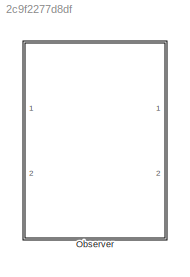
MODEL slx_2c9f2277d8df
KIND model
CONFIG AbsTol = auto
CONFIG EnableMultiTasking = off
CONFIG FixedStep = auto
CONFIG MaxStep = auto
CONFIG MinStep = auto
CONFIG RelTol = 1e-3
CONFIG SampleTimeConstraint = Unconstrained
CONFIG SolverName = VariableStepAuto
CONFIG StartTime = 0.0
CONFIG StopTime = 10.0
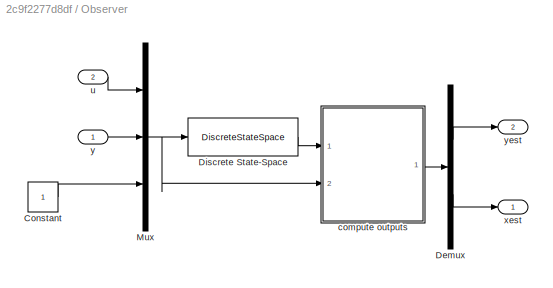
BLOCK [SubSystem] Observer
  Ports = [2, 2]
  RequestExecContextInheritance = off
BLOCK [Constant] Observer/Constant
BLOCK [Demux] Observer/Demux
  Outputs = [sim_ny sim_nx]
  Ports = [1, 2]
BLOCK [DiscreteStateSpace] Observer/Discrete State-Space
  A = sim_Aobs
  B = sim_Bobs
  C = eye(size(sim_Aobs))
  D = zeros(size(sim_Aobs,1),size(sim_Bobs,2))
  InitialCondition = [sim_x0obs; sim_d0obs]
  SampleTime = sim_TsObs
BLOCK [Mux] Observer/Mux
  DisplayOption = bar
  Inputs = 3
  Ports = [3, 1]
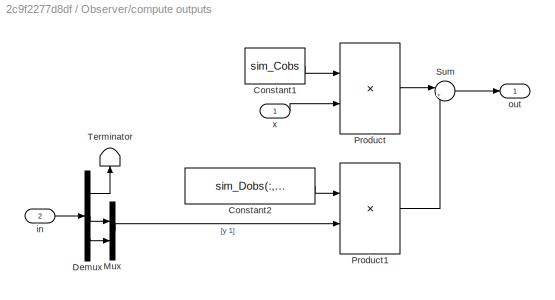
BLOCK [SubSystem] Observer/compute outputs
  Ports = [2, 1]
  RequestExecContextInheritance = off
BLOCK [Constant] Observer/compute outputs/Constant1
  Value = sim_Cobs
BLOCK [Constant] Observer/compute outputs/Constant2
  Value = sim_Dobs(:,sim_nu+1:end)
BLOCK [Demux] Observer/compute outputs/Demux
  Outputs = [sim_nu sim_ny 1]
  Ports = [1, 3]
BLOCK [Mux] Observer/compute outputs/Mux
  DisplayOption = bar
  Inputs = 2
  Ports = [2, 1]
BLOCK [Product] Observer/compute outputs/Product
  Multiplication = Matrix(*)
  Ports = [2, 1]
  SampleTime = sim_TsObs
BLOCK [Product] Observer/compute outputs/Product1
  Multiplication = Matrix(*)
  Ports = [2, 1]
  SampleTime = sim_TsObs
BLOCK [Sum] Observer/compute outputs/Sum
  Inputs = |++
  Ports = [2, 1]
BLOCK [Terminator] Observer/compute outputs/Terminator
  NameLocation = right
BLOCK [Inport] Observer/compute outputs/in
  Port = 2
BLOCK [Outport] Observer/compute outputs/out
BLOCK [Inport] Observer/compute outputs/x
BLOCK [Inport] Observer/u
  Port = 2
BLOCK [Outport] Observer/xest
BLOCK [Inport] Observer/y
BLOCK [Outport] Observer/yest
  Port = 2
LINE Observer/Constant:1 -> Observer/Mux:3
LINE Observer/Demux:1 -> Observer/yest:1
LINE Observer/Demux:2 -> Observer/xest:1
LINE Observer/Discrete State-Space:1 -> Observer/compute outputs:1
NET Observer/Mux:1 -> Observer/Discrete State-Space:1, Observer/compute outputs:2
LINE Observer/compute outputs/Constant1:1 -> Observer/compute outputs/Product:1
LINE Observer/compute outputs/Constant2:1 -> Observer/compute outputs/Product1:1
LINE Observer/compute outputs/Demux:1 -> Observer/compute outputs/Terminator:1
LINE Observer/compute outputs/Demux:2 -> Observer/compute outputs/Mux:1
LINE Observer/compute outputs/Demux:3 -> Observer/compute outputs/Mux:2
LINE Observer/compute outputs/Mux:1 -> Observer/compute outputs/Product1:2
LINE Observer/compute outputs/Product1:1 -> Observer/compute outputs/Sum:2
LINE Observer/compute outputs/Product:1 -> Observer/compute outputs/Sum:1
LINE Observer/compute outputs/Sum:1 -> Observer/compute outputs/out:1
LINE Observer/compute outputs/in:1 -> Observer/compute outputs/Demux:1
LINE Observer/compute outputs/x:1 -> Observer/compute outputs/Product:2
LINE Observer/compute outputs:1 -> Observer/Demux:1
LINE Observer/u:1 -> Observer/Mux:1
LINE Observer/y:1 -> Observer/Mux:2
note: NET lines group one-source signal fan-out (src -> all destinations, sorted); 1:1 wires keep LINE
